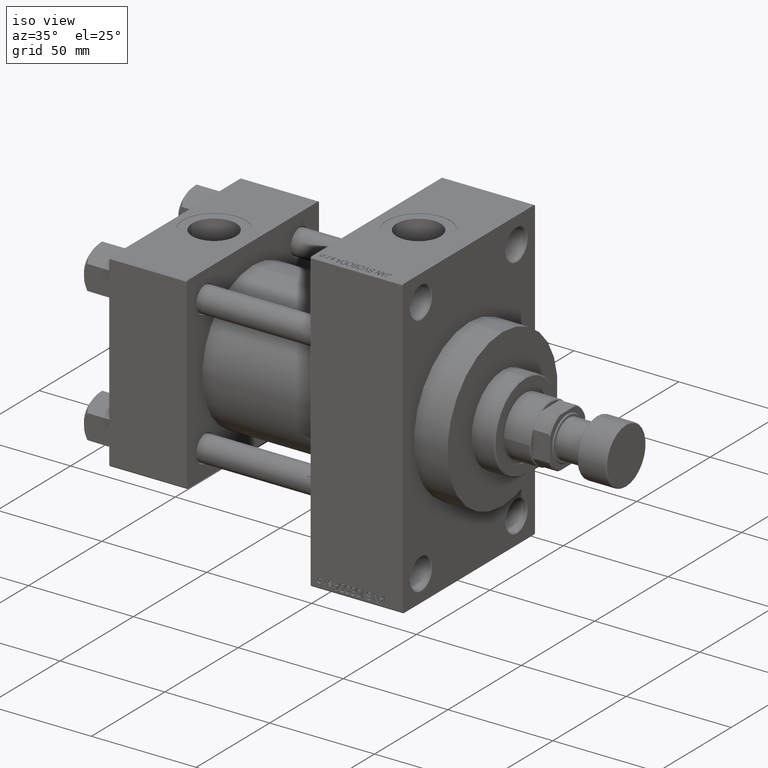
[diagram: clean part render]
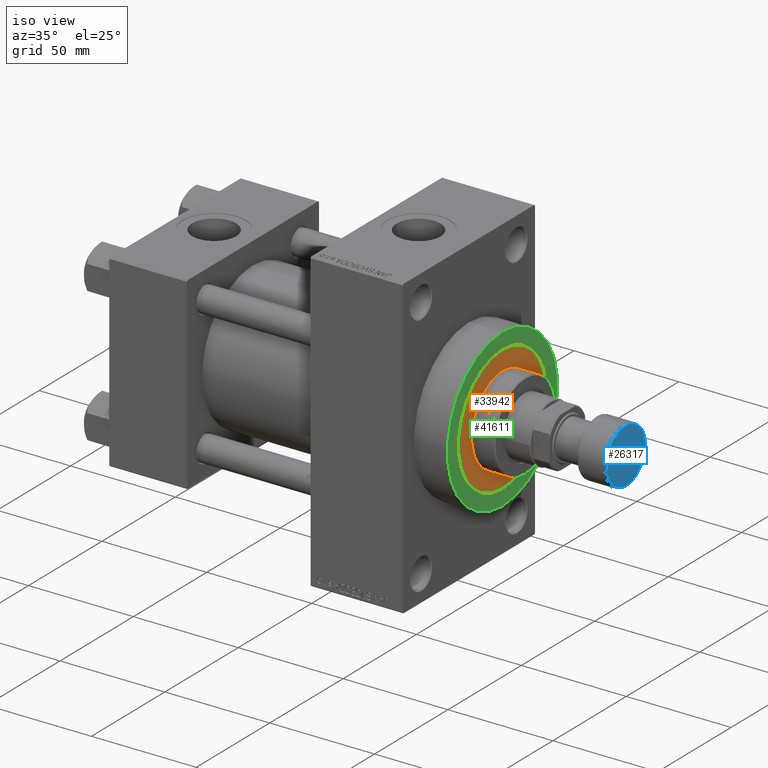
[diagram: same view with three faces highlighted in distinct colors, each labeled with its STEP entity id]
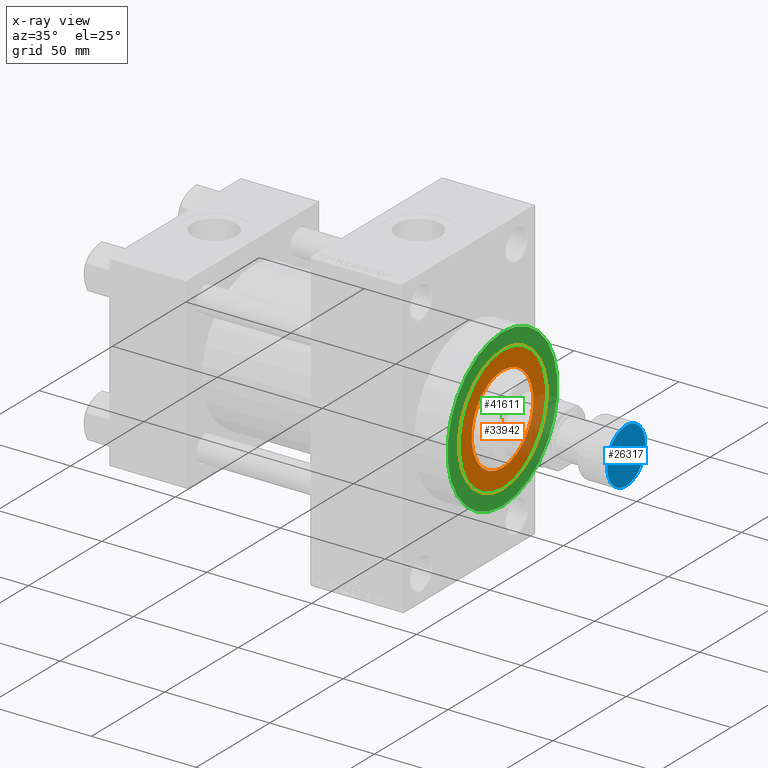
[diagram: x-ray of the same camera — body ghosted, the three highlighted faces saturated]
A machine part, iso view with three faces highlighted in distinct colors.
The next image is the same camera in x-ray (body ghosted, the three faces saturated) — at least one of them is partly hidden behind the body in this view.
Their STEP definitions:

[orange] entity #33942 — the highlighted planar face has unit normal (1, 0, 0).
#991 = CARTESIAN_POINT ( 'NONE',  ( 21.00000000000000000, 2.571758278209441661E-15, 43.25999999999999801 ) ) ;
#2236 = VERTEX_POINT ( 'NONE', #25969 ) ;
#2518 = DIRECTION ( 'NONE',  ( 0.000000000000000000, 0.000000000000000000, 1.000000000000000000 ) ) ;
#3347 = DIRECTION ( 'NONE',  ( 1.000000000000000000, 0.000000000000000000, -0.000000000000000000 ) ) ;
#3587 = FACE_BOUND ( 'NONE', #16525, .T. ) ;
#3799 = EDGE_CURVE ( 'NONE', #25304, #9256, #35025, .T. ) ;
#5381 = CARTESIAN_POINT ( 'NONE',  ( 30.00000000000000000, 3.673940397442059178E-15, 43.25999999999999801 ) ) ;
#9256 = VERTEX_POINT ( 'NONE', #991 ) ;
#10298 = ORIENTED_EDGE ( 'NONE', *, *, #3799, .F. ) ;
#10922 = ORIENTED_EDGE ( 'NONE', *, *, #22836, .T. ) ;
#11927 = AXIS2_PLACEMENT_3D ( 'NONE', #37130, #44115, #32798 ) ;
#12135 = CIRCLE ( 'NONE', #36013, 30.00000000000000000 ) ;
#12562 = ORIENTED_EDGE ( 'NONE', *, *, #38240, .T. ) ;
#15582 = CIRCLE ( 'NONE', #43296, 30.00000000000000000 ) ;
#16511 = CARTESIAN_POINT ( 'NONE',  ( 0.000000000000000000, 0.000000000000000000, 43.25999999999999801 ) ) ;
#16525 = EDGE_LOOP ( 'NONE', ( #10298, #18857 ) ) ;
#18057 = FACE_OUTER_BOUND ( 'NONE', #38390, .T. ) ;
#18857 = ORIENTED_EDGE ( 'NONE', *, *, #27016, .F. ) ;
#18883 = CARTESIAN_POINT ( 'NONE',  ( 0.000000000000000000, 0.000000000000000000, 43.25999999999999801 ) ) ;
#21480 = CIRCLE ( 'NONE', #27647, 21.00000000000000000 ) ;
#22836 = EDGE_CURVE ( 'NONE', #28698, #2236, #12135, .T. ) ;
#25304 = VERTEX_POINT ( 'NONE', #25490 ) ;
#25490 = CARTESIAN_POINT ( 'NONE',  ( -21.00000000000000000, 0.000000000000000000, 43.25999999999999801 ) ) ;
#25969 = CARTESIAN_POINT ( 'NONE',  ( -30.00000000000000000, 0.000000000000000000, 43.25999999999999801 ) ) ;
#27016 = EDGE_CURVE ( 'NONE', #9256, #25304, #21480, .T. ) ;
#27647 = AXIS2_PLACEMENT_3D ( 'NONE', #29430, #28950, #44142 ) ;
#28698 = VERTEX_POINT ( 'NONE', #5381 ) ;
#28950 = DIRECTION ( 'NONE',  ( 0.000000000000000000, 0.000000000000000000, 1.000000000000000000 ) ) ;
#29430 = CARTESIAN_POINT ( 'NONE',  ( 0.000000000000000000, 0.000000000000000000, 43.25999999999999801 ) ) ;
#29486 = DIRECTION ( 'NONE',  ( 1.000000000000000000, 0.000000000000000000, 0.000000000000000000 ) ) ;
#32798 = DIRECTION ( 'NONE',  ( 1.000000000000000000, 0.000000000000000000, 0.000000000000000000 ) ) ;
#33006 = DIRECTION ( 'NONE',  ( 0.000000000000000000, 0.000000000000000000, 1.000000000000000000 ) ) ;
#33942 = ADVANCED_FACE ( 'NONE', ( #3587, #18057 ), #43374, .T. ) ;
#35025 = CIRCLE ( 'NONE', #11927, 21.00000000000000000 ) ;
#36013 = AXIS2_PLACEMENT_3D ( 'NONE', #18883, #40829, #29486 ) ;
#37130 = CARTESIAN_POINT ( 'NONE',  ( 0.000000000000000000, 0.000000000000000000, 43.25999999999999801 ) ) ;
#38240 = EDGE_CURVE ( 'NONE', #2236, #28698, #15582, .T. ) ;
#38390 = EDGE_LOOP ( 'NONE', ( #12562, #10922 ) ) ;
#40829 = DIRECTION ( 'NONE',  ( 0.000000000000000000, 0.000000000000000000, 1.000000000000000000 ) ) ;
#41646 = AXIS2_PLACEMENT_3D ( 'NONE', #46993, #33006, #3347 ) ;
#42304 = DIRECTION ( 'NONE',  ( 1.000000000000000000, 0.000000000000000000, 0.000000000000000000 ) ) ;
#43296 = AXIS2_PLACEMENT_3D ( 'NONE', #16511, #2518, #42304 ) ;
#43374 = PLANE ( 'NONE',  #41646 ) ;
#44115 = DIRECTION ( 'NONE',  ( 0.000000000000000000, 0.000000000000000000, 1.000000000000000000 ) ) ;
#44142 = DIRECTION ( 'NONE',  ( 1.000000000000000000, 0.000000000000000000, 0.000000000000000000 ) ) ;
#46993 = CARTESIAN_POINT ( 'NONE',  ( 0.000000000000000000, 0.000000000000000000, 43.25999999999999801 ) ) ;

[blue] entity #26317 — the highlighted planar face has unit normal (1, 0, 0).
#5477 = VERTEX_POINT ( 'NONE', #37234 ) ;
#5720 = DIRECTION ( 'NONE',  ( 0.000000000000000000, 0.000000000000000000, 1.000000000000000000 ) ) ;
#9350 = CARTESIAN_POINT ( 'NONE',  ( -13.00000000000000000, 1.622657008870242882E-15, 0.000000000000000000 ) ) ;
#9818 = DIRECTION ( 'NONE',  ( 1.000000000000000000, 0.000000000000000000, 0.000000000000000000 ) ) ;
#10233 = EDGE_LOOP ( 'NONE', ( #14770, #17197 ) ) ;
#13772 = AXIS2_PLACEMENT_3D ( 'NONE', #31015, #34657, #38029 ) ;
#14770 = ORIENTED_EDGE ( 'NONE', *, *, #39175, .T. ) ;
#16322 = PLANE ( 'NONE',  #13772 ) ;
#16597 = DIRECTION ( 'NONE',  ( 1.000000000000000000, 0.000000000000000000, 0.000000000000000000 ) ) ;
#17197 = ORIENTED_EDGE ( 'NONE', *, *, #42767, .T. ) ;
#19473 = CIRCLE ( 'NONE', #46414, 13.00000000000000000 ) ;
#26317 = ADVANCED_FACE ( 'NONE', ( #37797 ), #16322, .T. ) ;
#31015 = CARTESIAN_POINT ( 'NONE',  ( 0.000000000000000000, 0.000000000000000000, 0.000000000000000000 ) ) ;
#31540 = DIRECTION ( 'NONE',  ( 0.000000000000000000, 0.000000000000000000, 1.000000000000000000 ) ) ;
#31755 = CARTESIAN_POINT ( 'NONE',  ( 0.000000000000000000, 0.000000000000000000, 0.000000000000000000 ) ) ;
#34657 = DIRECTION ( 'NONE',  ( 0.000000000000000000, 0.000000000000000000, 1.000000000000000000 ) ) ;
#34868 = AXIS2_PLACEMENT_3D ( 'NONE', #34929, #31540, #16597 ) ;
#34929 = CARTESIAN_POINT ( 'NONE',  ( 0.000000000000000000, 0.000000000000000000, 0.000000000000000000 ) ) ;
#35174 = VERTEX_POINT ( 'NONE', #9350 ) ;
#37234 = CARTESIAN_POINT ( 'NONE',  ( 13.00000000000000000, 0.000000000000000000, 0.000000000000000000 ) ) ;
#37797 = FACE_OUTER_BOUND ( 'NONE', #10233, .T. ) ;
#38029 = DIRECTION ( 'NONE',  ( 1.000000000000000000, 0.000000000000000000, -0.000000000000000000 ) ) ;
#38715 = CIRCLE ( 'NONE', #34868, 13.00000000000000000 ) ;
#39175 = EDGE_CURVE ( 'NONE', #5477, #35174, #38715, .T. ) ;
#42767 = EDGE_CURVE ( 'NONE', #35174, #5477, #19473, .T. ) ;
#46414 = AXIS2_PLACEMENT_3D ( 'NONE', #31755, #5720, #9818 ) ;

[green] entity #41611 — the highlighted planar face has unit normal (1, 0, 0).
#1312 = ORIENTED_EDGE ( 'NONE', *, *, #44519, .F. ) ;
#1513 = DIRECTION ( 'NONE',  ( 1.000000000000000000, 0.000000000000000000, 0.000000000000000000 ) ) ;
#1573 = VERTEX_POINT ( 'NONE', #22811 ) ;
#3935 = CIRCLE ( 'NONE', #43204, 37.50000000000000711 ) ;
#4169 = AXIS2_PLACEMENT_3D ( 'NONE', #22200, #20835, #31687 ) ;
#4484 = CARTESIAN_POINT ( 'NONE',  ( 156.0000000000000284, 0.000000000000000000, 0.000000000000000000 ) ) ;
#4526 = ORIENTED_EDGE ( 'NONE', *, *, #24073, .T. ) ;
#5885 = PLANE ( 'NONE',  #4169 ) ;
#7497 = FACE_OUTER_BOUND ( 'NONE', #25086, .T. ) ;
#8144 = CARTESIAN_POINT ( 'NONE',  ( 156.0000000000000284, 0.000000000000000000, 0.000000000000000000 ) ) ;
#9559 = VERTEX_POINT ( 'NONE', #45514 ) ;
#10722 = AXIS2_PLACEMENT_3D ( 'NONE', #12598, #1513, #34544 ) ;
#10820 = DIRECTION ( 'NONE',  ( 0.000000000000000000, 0.000000000000000000, -1.000000000000000000 ) ) ;
#11536 = DIRECTION ( 'NONE',  ( 1.000000000000000000, 0.000000000000000000, 0.000000000000000000 ) ) ;
#12164 = CIRCLE ( 'NONE', #29876, 37.50000000000000711 ) ;
#12598 = CARTESIAN_POINT ( 'NONE',  ( 156.0000000000000284, 0.000000000000000000, 0.000000000000000000 ) ) ;
#14678 = CARTESIAN_POINT ( 'NONE',  ( 156.0000000000000284, 0.000000000000000000, -30.00000000000000000 ) ) ;
#19516 = VERTEX_POINT ( 'NONE', #14678 ) ;
#19656 = CARTESIAN_POINT ( 'NONE',  ( 156.0000000000000284, 0.000000000000000000, 0.000000000000000000 ) ) ;
#20835 = DIRECTION ( 'NONE',  ( 1.000000000000000000, 0.000000000000000000, 0.000000000000000000 ) ) ;
#22200 = CARTESIAN_POINT ( 'NONE',  ( 156.0000000000000284, 0.000000000000000000, 0.000000000000000000 ) ) ;
#22811 = CARTESIAN_POINT ( 'NONE',  ( 156.0000000000000284, 4.592425496802575156E-15, -37.50000000000000711 ) ) ;
#24073 = EDGE_CURVE ( 'NONE', #1573, #9559, #12164, .T. ) ;
#24896 = AXIS2_PLACEMENT_3D ( 'NONE', #8144, #11536, #10820 ) ;
#25086 = EDGE_LOOP ( 'NONE', ( #36921, #4526 ) ) ;
#25957 = DIRECTION ( 'NONE',  ( 0.000000000000000000, 0.000000000000000000, -1.000000000000000000 ) ) ;
#26908 = EDGE_CURVE ( 'NONE', #19516, #39735, #36112, .T. ) ;
#27827 = EDGE_LOOP ( 'NONE', ( #46798, #1312 ) ) ;
#29876 = AXIS2_PLACEMENT_3D ( 'NONE', #19656, #34376, #45453 ) ;
#31687 = DIRECTION ( 'NONE',  ( 0.000000000000000000, 0.000000000000000000, -1.000000000000000000 ) ) ;
#33671 = DIRECTION ( 'NONE',  ( 1.000000000000000000, 0.000000000000000000, 0.000000000000000000 ) ) ;
#34376 = DIRECTION ( 'NONE',  ( 1.000000000000000000, 0.000000000000000000, 0.000000000000000000 ) ) ;
#34544 = DIRECTION ( 'NONE',  ( 0.000000000000000000, 0.000000000000000000, -1.000000000000000000 ) ) ;
#35383 = EDGE_CURVE ( 'NONE', #9559, #1573, #3935, .T. ) ;
#36112 = CIRCLE ( 'NONE', #10722, 30.00000000000000000 ) ;
#36921 = ORIENTED_EDGE ( 'NONE', *, *, #35383, .T. ) ;
#39735 = VERTEX_POINT ( 'NONE', #41276 ) ;
#40331 = CIRCLE ( 'NONE', #24896, 30.00000000000000000 ) ;
#40531 = FACE_BOUND ( 'NONE', #27827, .T. ) ;
#41276 = CARTESIAN_POINT ( 'NONE',  ( 156.0000000000000284, 3.673940397442059178E-15, 30.00000000000000000 ) ) ;
#41611 = ADVANCED_FACE ( 'NONE', ( #40531, #7497 ), #5885, .T. ) ;
#43204 = AXIS2_PLACEMENT_3D ( 'NONE', #4484, #33671, #25957 ) ;
#44519 = EDGE_CURVE ( 'NONE', #39735, #19516, #40331, .T. ) ;
#45453 = DIRECTION ( 'NONE',  ( 0.000000000000000000, 0.000000000000000000, -1.000000000000000000 ) ) ;
#45514 = CARTESIAN_POINT ( 'NONE',  ( 156.0000000000000284, 0.000000000000000000, 37.50000000000000711 ) ) ;
#46798 = ORIENTED_EDGE ( 'NONE', *, *, #26908, .F. ) ;